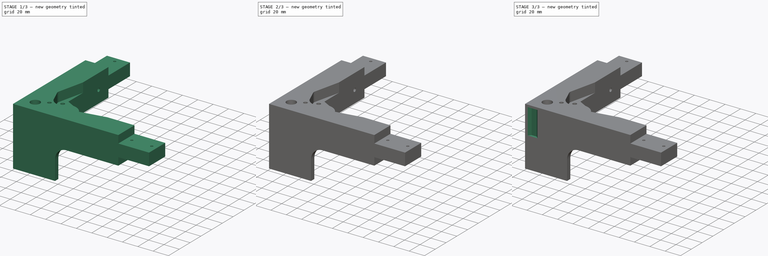
[diagram: build sequence overview — one tinted view per stage of 3, left to right]
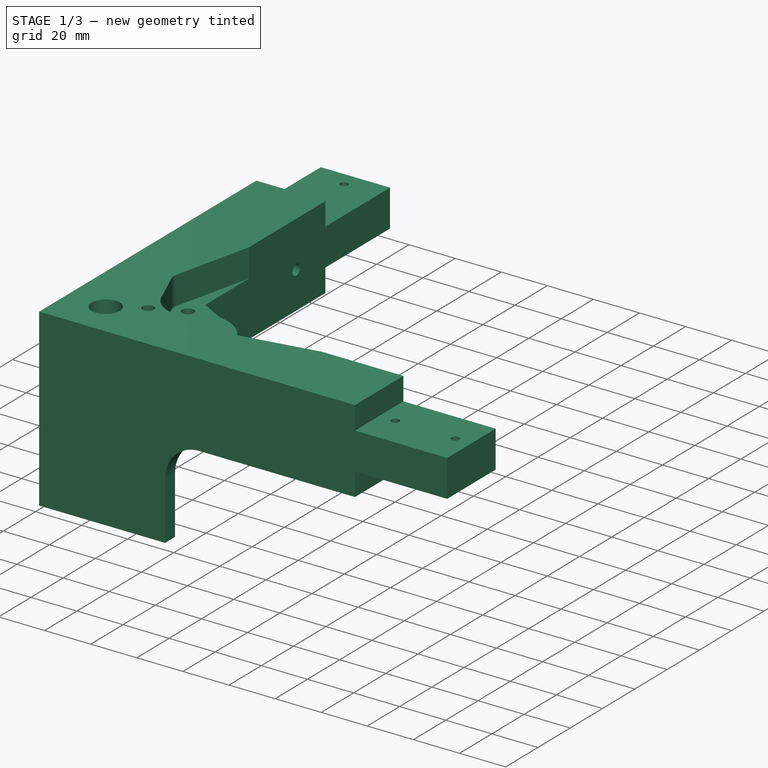
[diagram: stage 1 of 3 — iso view after this stage's code; geometry added in this stage tinted green]
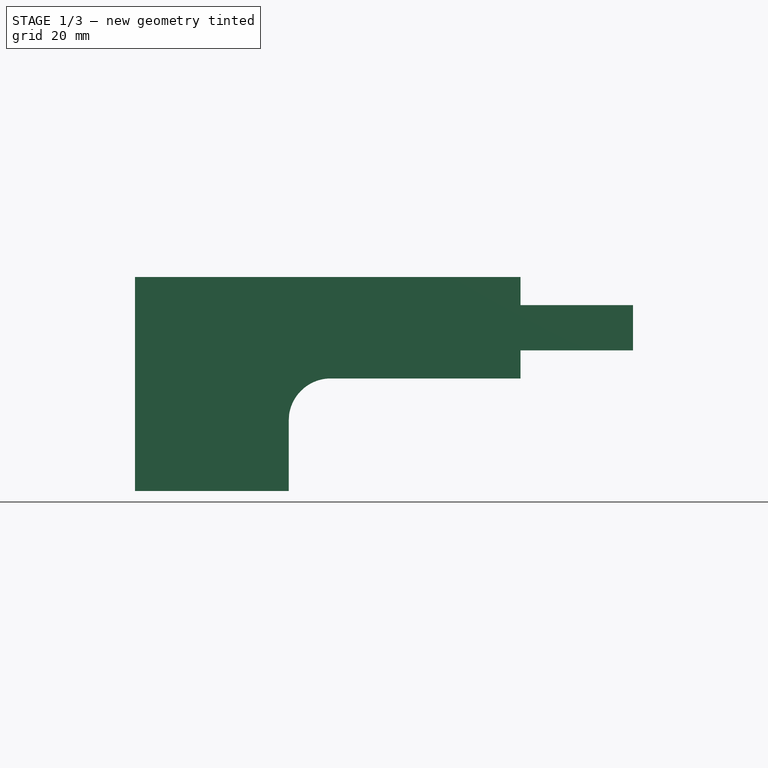
[diagram: stage 1 of 3 — front view after this stage's code; geometry added in this stage tinted green]
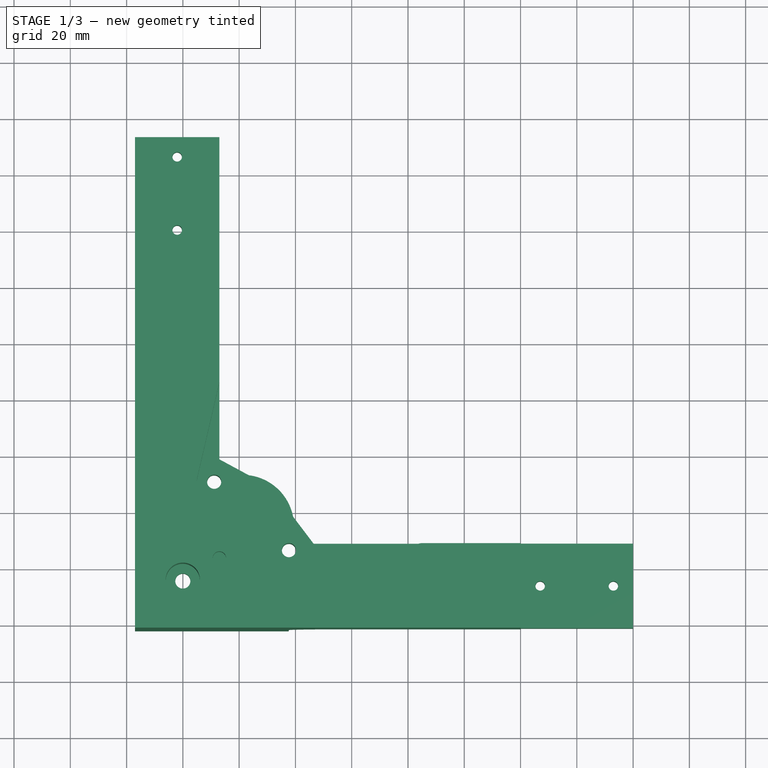
[diagram: stage 1 of 3 — top view after this stage's code; geometry added in this stage tinted green]
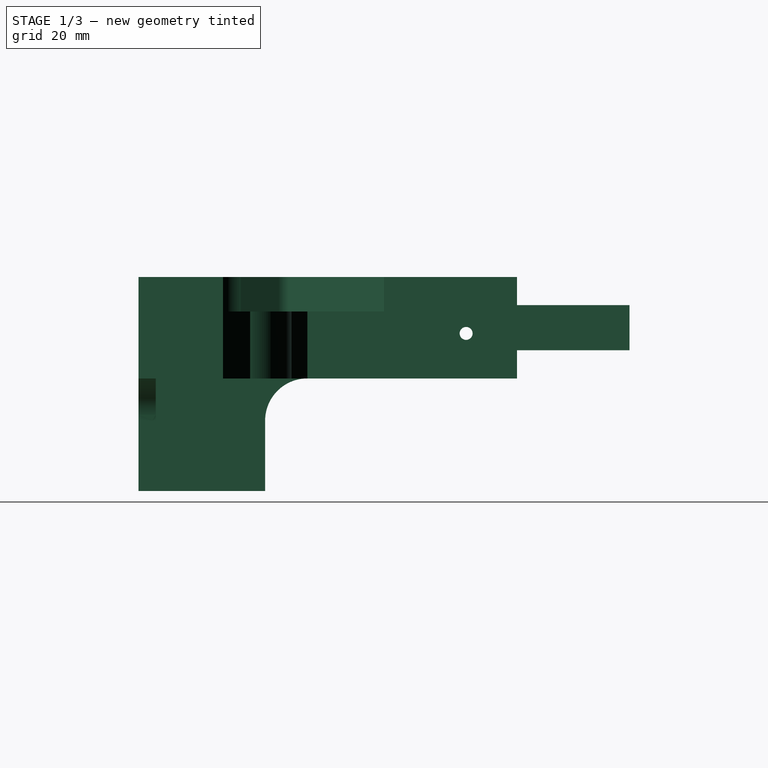
[diagram: stage 1 of 3 — right view after this stage's code; geometry added in this stage tinted green]
FCSTD DOCUMENT  (FreeCAD 2024.2R37179 (Git))
Label: Bottom_front_left_frame
License: All rights reserved
LicenseURL: http://en.wikipedia.org/wiki/All_rights_reserved
objects: PartDesign::Pocket×5, Sketcher::SketchObject×3, Part::Feature×1, PartDesign::FeatureBase×1, PartDesign::Chamfer×1, PartDesign::Body×1
note: 18 computed .brp shape members not serialized (recipe doc carries the construction recipe); baked Part::Feature solids carry a one-line shape summary decoded from their .brp

FEATURE [Part::Feature] Part__Mirroring001  label="Pocket004 (Mirror #1)001"
  shape: bbox 177 x 174.5 x 76.05 mm, 121 faces (baked)
FEATURE [PartDesign::FeatureBase] BaseFeature
  BaseFeature = -> Part__Mirroring001
  Suppressed = false
FEATURE [Sketcher::SketchObject] Sketch
  AttachmentSupport = -> [BaseFeature]
  FullyConstrained = false
  MapMode = 5
  Placement = pos=(-177.024,0,0) rot=(0.57735,-0.57735,-0.57735;2.0944rad)
  sketch-geometry (24):
    g0: Circle CenterX=145.37 CenterY=-170.095 CenterZ=0 NormalX=0 NormalY=0 NormalZ=1 AngleXU=0 Radius=1.5
    g1: Circle CenterX=145.37 CenterY=-182.097 CenterZ=0 NormalX=0 NormalY=0 NormalZ=1 AngleXU=0 Radius=1.5
    g2: Circle CenterX=145.369 CenterY=-194.094 CenterZ=0 NormalX=0 NormalY=0 NormalZ=1 AngleXU=0 Radius=1.5
    g3: LineSegment StartX=148.595 StartY=-170.095 StartZ=0 EndX=146.982 EndY=-167.302 EndZ=0
    g4: LineSegment StartX=146.982 StartY=-167.302 StartZ=0 EndX=143.758 EndY=-167.302 EndZ=0
    g5: LineSegment StartX=143.758 StartY=-167.302 StartZ=0 EndX=142.146 EndY=-170.095 EndZ=0
    g6: LineSegment StartX=142.146 StartY=-170.095 StartZ=0 EndX=143.758 EndY=-172.887 EndZ=0
    g7: LineSegment StartX=143.758 StartY=-172.887 StartZ=0 EndX=146.982 EndY=-172.887 EndZ=0
    g8: LineSegment StartX=146.982 StartY=-172.887 StartZ=0 EndX=148.595 EndY=-170.095 EndZ=0
    g9: Circle CenterX=145.37 CenterY=-170.095 CenterZ=0 NormalX=0 NormalY=0 NormalZ=1 AngleXU=0 Radius=3.2245
    g10: LineSegment StartX=148.594 StartY=-182.097 StartZ=0 EndX=146.982 EndY=-179.304 EndZ=0
    g11: LineSegment StartX=146.982 StartY=-179.304 StartZ=0 EndX=143.757 EndY=-179.304 EndZ=0
    g12: LineSegment StartX=143.757 StartY=-179.304 StartZ=0 EndX=142.145 EndY=-182.097 EndZ=0
    g13: LineSegment StartX=142.145 StartY=-182.097 StartZ=0 EndX=143.757 EndY=-184.889 EndZ=0
    g14: LineSegment StartX=143.757 StartY=-184.889 StartZ=0 EndX=146.982 EndY=-184.889 EndZ=0
    g15: LineSegment StartX=146.982 StartY=-184.889 StartZ=0 EndX=148.594 EndY=-182.097 EndZ=0
    g16: Circle CenterX=145.37 CenterY=-182.097 CenterZ=0 NormalX=0 NormalY=0 NormalZ=1 AngleXU=0 Radius=3.2245
    g17: LineSegment StartX=148.594 StartY=-194.094 StartZ=0 EndX=146.982 EndY=-191.301 EndZ=0
    g18: LineSegment StartX=146.982 StartY=-191.301 StartZ=0 EndX=143.757 EndY=-191.301 EndZ=0
    g19: LineSegment StartX=143.757 StartY=-191.301 StartZ=0 EndX=142.145 EndY=-194.094 EndZ=0
    g20: LineSegment StartX=142.145 StartY=-194.094 StartZ=0 EndX=143.757 EndY=-196.886 EndZ=0
    g21: LineSegment StartX=143.757 StartY=-196.886 StartZ=0 EndX=146.982 EndY=-196.886 EndZ=0
    g22: LineSegment StartX=146.982 StartY=-196.886 StartZ=0 EndX=148.594 EndY=-194.094 EndZ=0
    g23: Circle CenterX=145.369 CenterY=-194.094 CenterZ=0 NormalX=0 NormalY=0 NormalZ=1 AngleXU=0 Radius=3.2245
  constraints (48):
    c: Diameter(g0) = 3
    c: Diameter(g1) = 3
    c: Diameter(g2) = 3
    c: Coincident(g3,g4)
    c: Coincident(g4,g5)
    c: Coincident(g5,g6)
    c: Coincident(g6,g7)
    c: Coincident(g7,g8)
    c: Coincident(g8,g3)
    c: Equal(g3, g4-g8) x5
    c: PointOnObject(g3,g9)
    c: PointOnObject(g4,g9)
    c: PointOnObject(g5,g9)
    c: PointOnObject(g6,g9)
    c: PointOnObject(g7,g9)
    c: PointOnObject(g8,g9)
    c: Radius(g9) = 3.2245
    c: Coincident(g9,g0)
    c: Coincident(g10,g11)
    c: Coincident(g11,g12)
    c: Coincident(g12,g13)
    c: Coincident(g13,g14)
    c: Coincident(g14,g15)
    c: Coincident(g15,g10)
    c: Equal(g10, g11-g15) x5
    c: PointOnObject(g10,g16)
    c: PointOnObject(g11,g16)
    c: PointOnObject(g12,g16)
    c: PointOnObject(g13,g16)
    c: PointOnObject(g14,g16)
    c: PointOnObject(g15,g16)
    c: Radius(g16) = 3.2245
    c: Coincident(g16,g1)
    c: Coincident(g17,g18)
    c: Coincident(g18,g19)
    c: Coincident(g19,g20)
    c: Coincident(g20,g21)
    c: Coincident(g21,g22)
    c: Coincident(g22,g17)
    c: Equal(g17, g18-g22) x5
    c: PointOnObject(g17,g23)
    c: PointOnObject(g18,g23)
    c: PointOnObject(g19,g23)
    c: PointOnObject(g20,g23)
    c: PointOnObject(g21,g23)
    c: PointOnObject(g22,g23)
    c: Radius(g23) = 3.2245
    c: Coincident(g23,g2)
FEATURE [PartDesign::Pocket] Pocket
  BaseFeature = -> BaseFeature
  Direction = (1,0,0)
  Length = 5
  Length2 = 5
  Profile = -> Sketch
  ReferenceAxis = -> Sketch [N_Axis]
  Refine = true
  Suppressed = false
  Type = 0
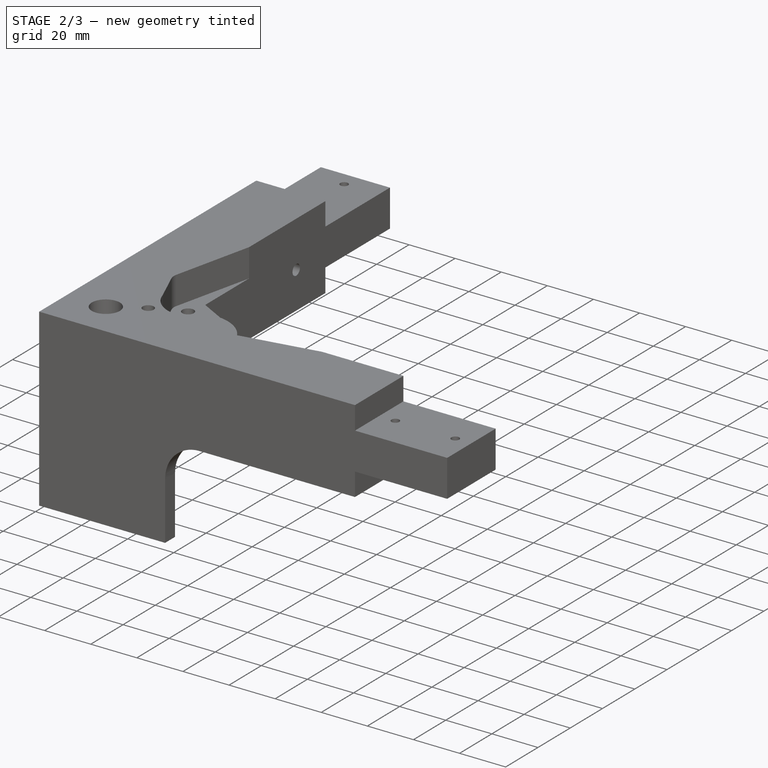
[diagram: stage 2 of 3 — iso view after this stage's code; geometry added in this stage tinted green]
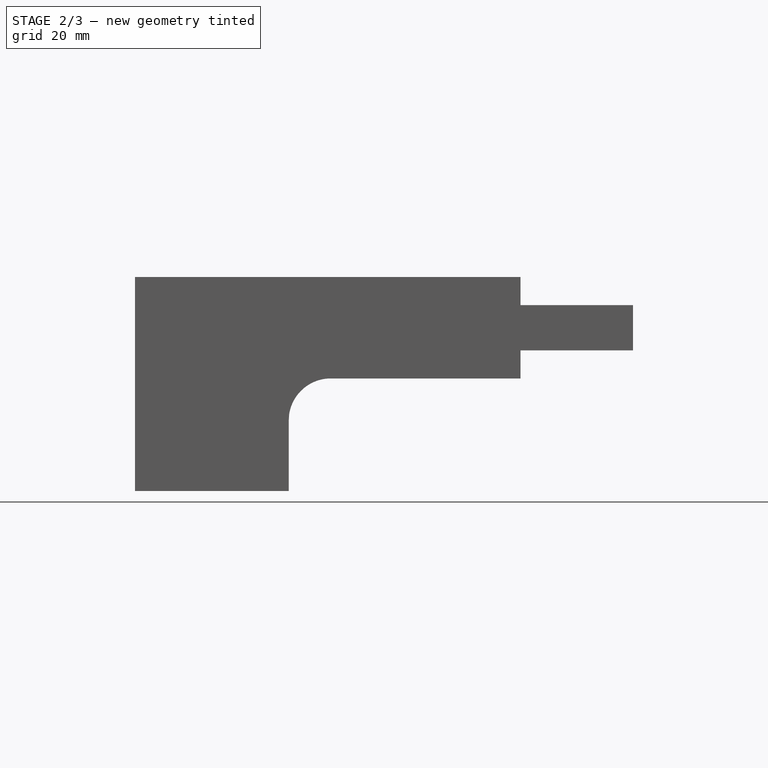
[diagram: stage 2 of 3 — front view after this stage's code; geometry added in this stage tinted green]
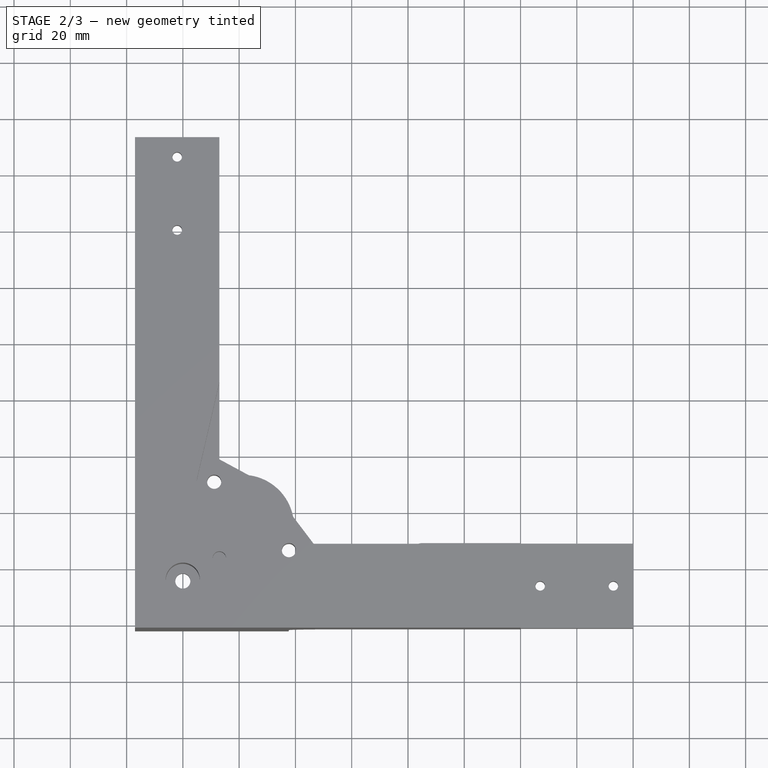
[diagram: stage 2 of 3 — top view after this stage's code; geometry added in this stage tinted green]
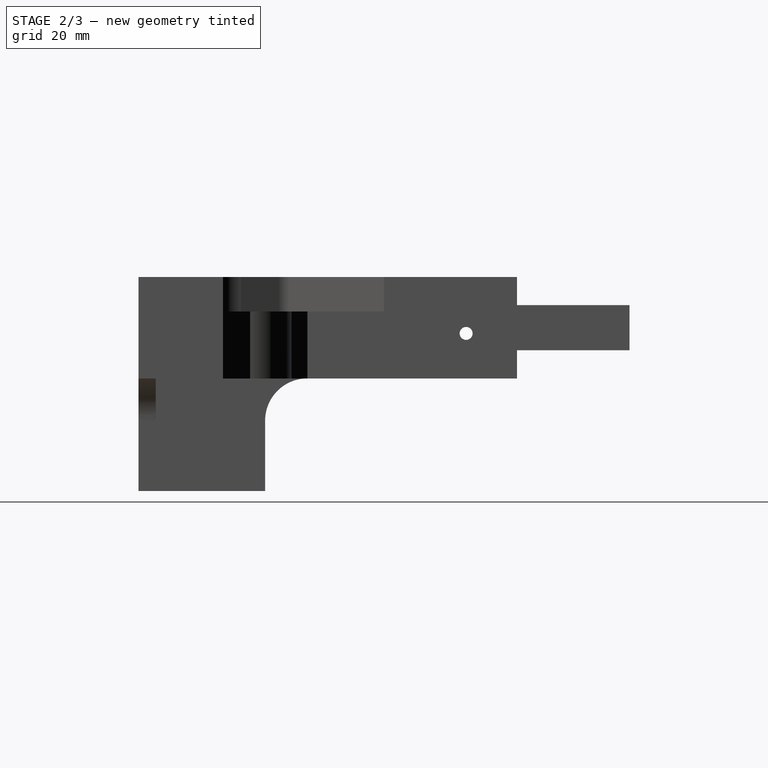
[diagram: stage 2 of 3 — right view after this stage's code; geometry added in this stage tinted green]
FEATURE [PartDesign::Pocket] Pocket001
  BaseFeature = -> Pocket
  Direction = (13270.5,0,0)
  Length = 5
  Length2 = 5
  Profile = -> Pocket [Face145,Face146,Face147]
  Refine = true
  Suppressed = false
  Type = 0
FEATURE [Sketcher::SketchObject] Sketch001
  AttachmentSupport = -> [Pocket001]
  FullyConstrained = false
  MapMode = 5
  Placement = pos=(-177.024,0,0) rot=(0.57735,-0.57735,-0.57735;2.0944rad)
  sketch-geometry (8):
    g0: Circle CenterX=95.3665 CenterY=-182.098 CenterZ=0 NormalX=0 NormalY=0 NormalZ=1 AngleXU=0 Radius=1.819
    g1: LineSegment StartX=98.591 StartY=-182.098 StartZ=0 EndX=96.9788 EndY=-179.305 EndZ=0
    g2: LineSegment StartX=96.9788 StartY=-179.305 StartZ=0 EndX=93.7543 EndY=-179.305 EndZ=0
    g3: LineSegment StartX=93.7543 StartY=-179.305 StartZ=0 EndX=92.142 EndY=-182.098 EndZ=0
    g4: LineSegment StartX=92.142 StartY=-182.098 StartZ=0 EndX=93.7543 EndY=-184.89 EndZ=0
    g5: LineSegment StartX=93.7543 StartY=-184.89 StartZ=0 EndX=96.9788 EndY=-184.89 EndZ=0
    g6: LineSegment StartX=96.9788 StartY=-184.89 StartZ=0 EndX=98.591 EndY=-182.098 EndZ=0
    g7: Circle CenterX=95.3665 CenterY=-182.098 CenterZ=0 NormalX=0 NormalY=0 NormalZ=1 AngleXU=0 Radius=3.2245
  constraints (16):
    c: Radius(g0) = 1.819
    c: Coincident(g1,g2)
    c: Coincident(g2,g3)
    c: Coincident(g3,g4)
    c: Coincident(g4,g5)
    c: Coincident(g5,g6)
    c: Coincident(g6,g1)
    c: Equal(g1, g2-g6) x5
    c: PointOnObject(g1,g7)
    c: PointOnObject(g2,g7)
    c: PointOnObject(g3,g7)
    c: PointOnObject(g4,g7)
    c: PointOnObject(g5,g7)
    c: PointOnObject(g6,g7)
    c: Radius(g7) = 3.2245
    c: Coincident(g7,g0)
FEATURE [PartDesign::Pocket] Pocket002
  BaseFeature = -> Pocket001
  Direction = (1,0,0)
  Length = 5
  Length2 = 5
  Profile = -> Sketch001
  ReferenceAxis = -> Sketch001 [N_Axis]
  Refine = true
  Suppressed = false
  Type = 0
FEATURE [PartDesign::Pocket] Pocket003
  BaseFeature = -> Pocket002
  Direction = (13270.5,0,0)
  Length = 5
  Length2 = 5
  Profile = -> Pocket002 [Face153]
  Refine = true
  Suppressed = false
  Type = 0
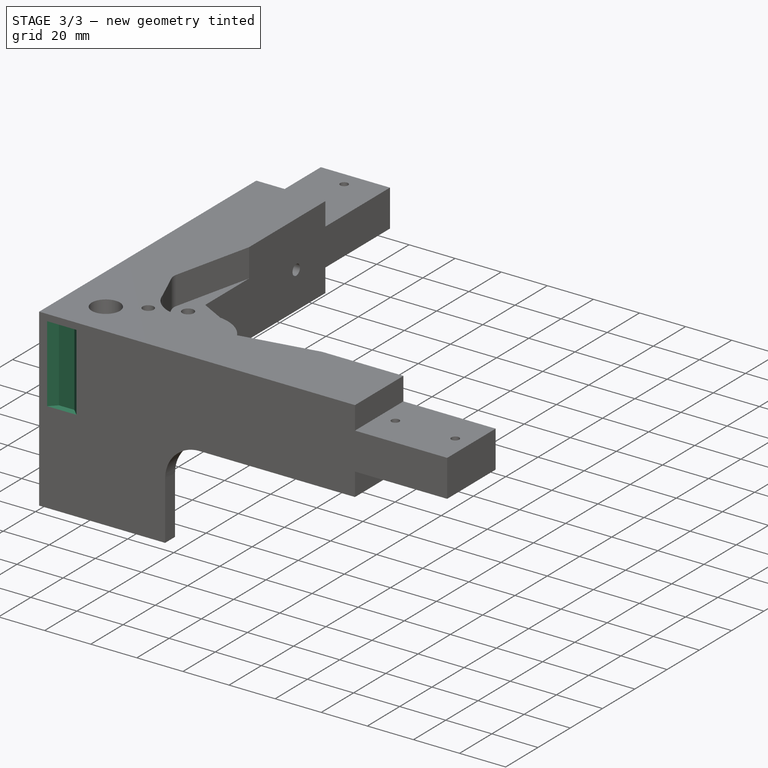
[diagram: stage 3 of 3 — iso view after this stage's code; geometry added in this stage tinted green]
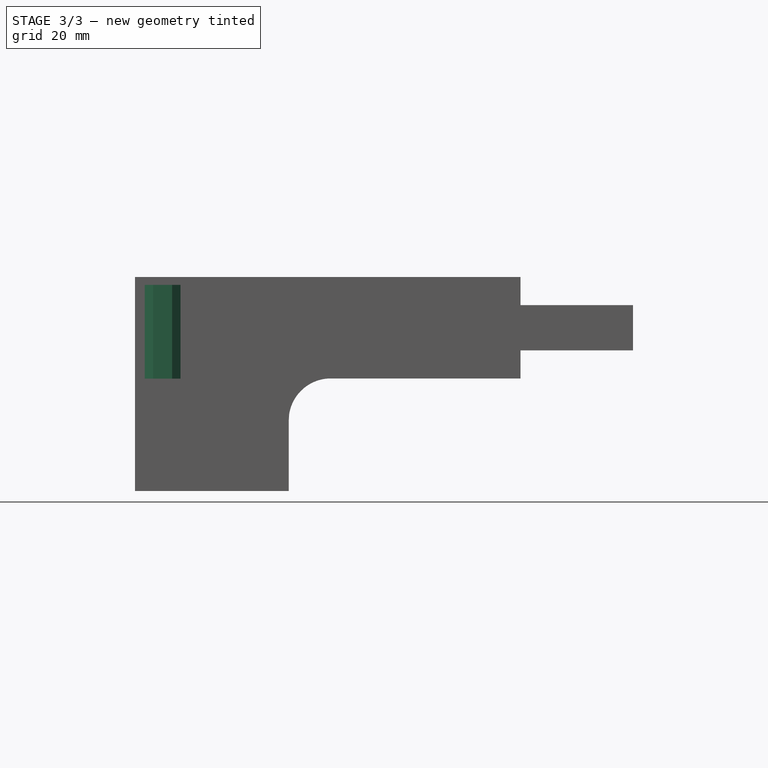
[diagram: stage 3 of 3 — front view after this stage's code; geometry added in this stage tinted green]
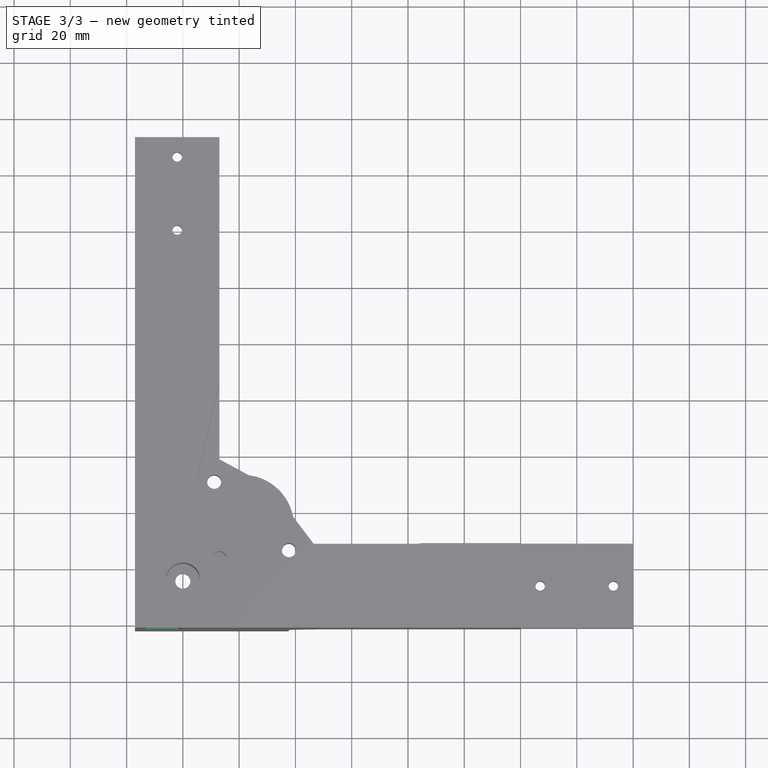
[diagram: stage 3 of 3 — top view after this stage's code; geometry added in this stage tinted green]
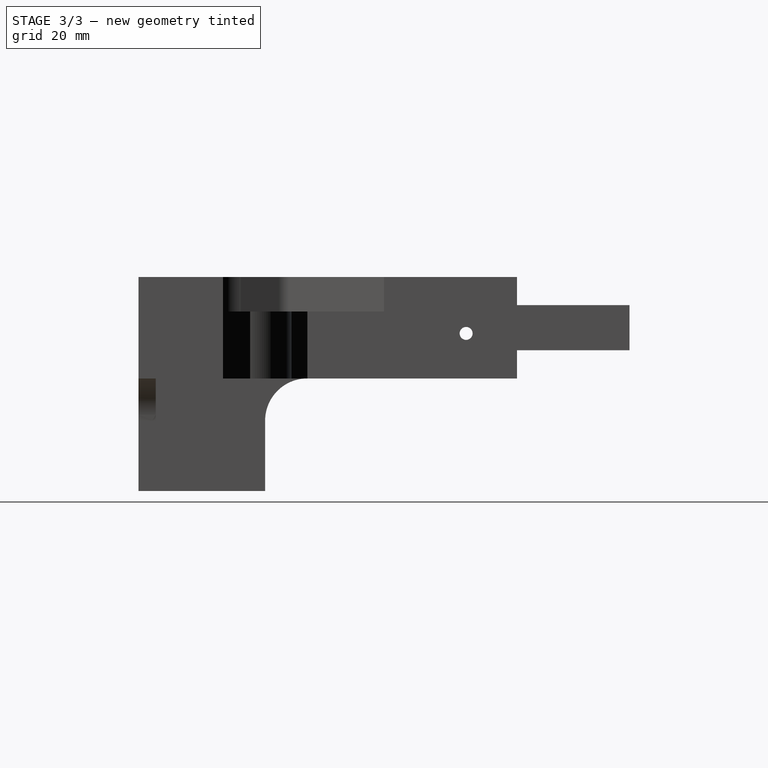
[diagram: stage 3 of 3 — right view after this stage's code; geometry added in this stage tinted green]
FEATURE [Sketcher::SketchObject] Sketch002
  AttachmentSupport = -> [Pocket003]
  FullyConstrained = false
  MapMode = 5
  Placement = pos=(0,-161.936,0) rot=(1,0,0;1.5708rad)
  sketch-geometry (4):
    g0: LineSegment StartX=-170.564 StartY=-166.71 StartZ=0 EndX=-170.564 EndY=-200.031 EndZ=0
    g1: LineSegment StartX=-170.564 StartY=-200.031 StartZ=0 EndX=-163.838 EndY=-200.031 EndZ=0
    g2: LineSegment StartX=-163.838 StartY=-200.031 StartZ=0 EndX=-163.838 EndY=-166.71 EndZ=0
    g3: LineSegment StartX=-163.838 StartY=-166.71 StartZ=0 EndX=-170.564 EndY=-166.71 EndZ=0
  constraints (8):
    c: Coincident(g0,g1)
    c: Coincident(g1,g2)
    c: Coincident(g2,g3)
    c: Coincident(g3,g0)
    c: Vertical(g0)
    c: Vertical(g2)
    c: Horizontal(g1)
    c: Horizontal(g3)
FEATURE [PartDesign::Pocket] Pocket004
  BaseFeature = -> Pocket003
  Direction = (0,1,-2e-16)
  Length = 3
  Length2 = 5
  Profile = -> Sketch002
  ReferenceAxis = -> Sketch002 [N_Axis]
  Refine = true
  Suppressed = false
  Type = 0
FEATURE [PartDesign::Chamfer] Chamfer
  Angle = 45
  Base = -> Pocket004 [Edge236,Edge238]
  BaseFeature = -> Pocket004
  ChamferType = 0
  FlipDirection = false
  Refine = true
  Size = 2.99
  Size2 = 1
  SupportTransform = false
  Suppressed = false
  UseAllEdges = false
FEATURE [PartDesign::Body] Body
  BaseFeature = -> Part__Mirroring001
  Group = -> [BaseFeature,Sketch,Pocket,Pocket001,Sketch001,Pocket002,Pocket003,Sketch002,Pocket004,Chamfer]
  Origin = -> Origin
  Tip = -> Chamfer
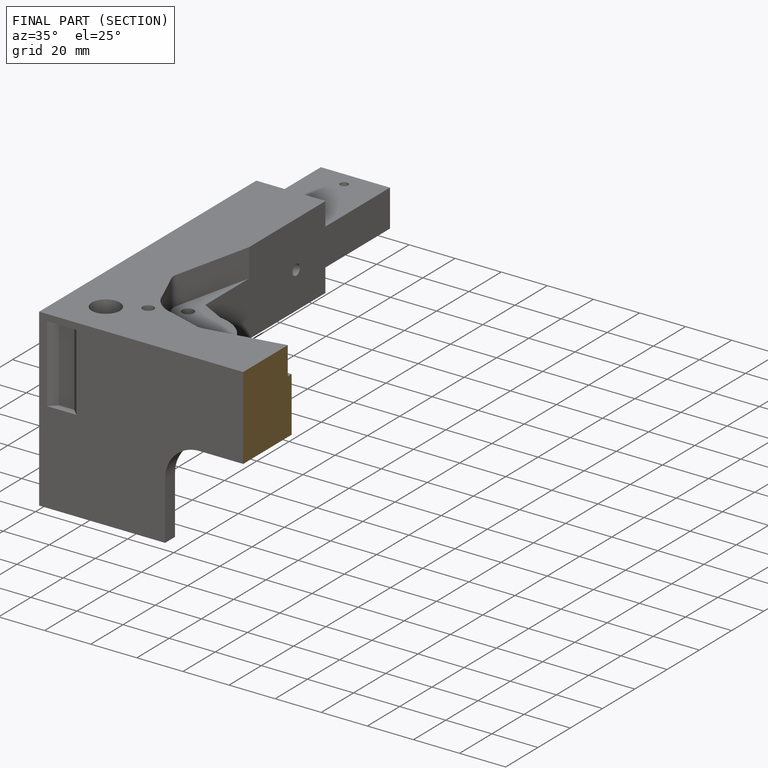
[diagram: finished part — half-section view (interior)]
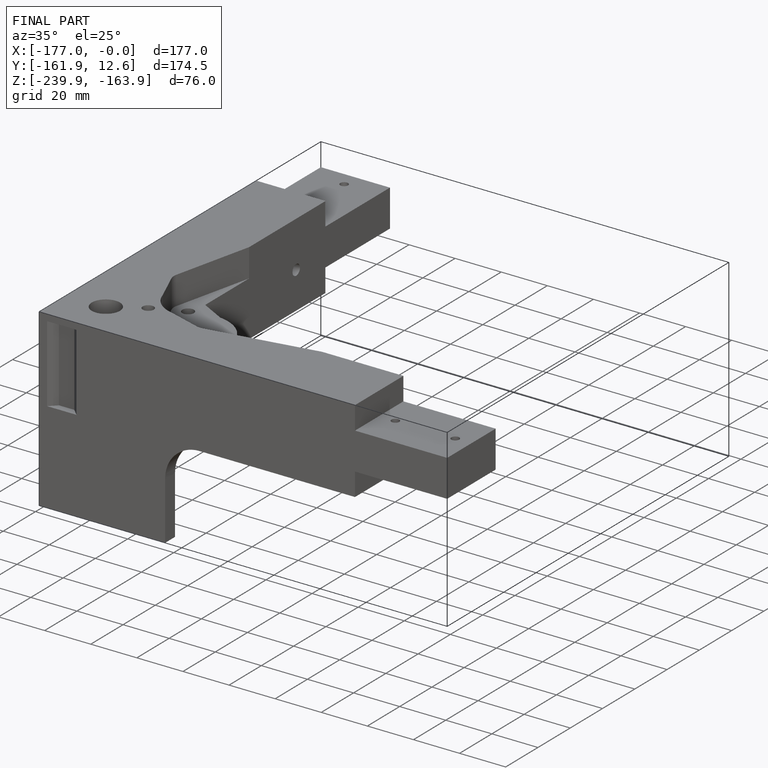
[diagram: finished part — iso view with bounding-box wireframe]
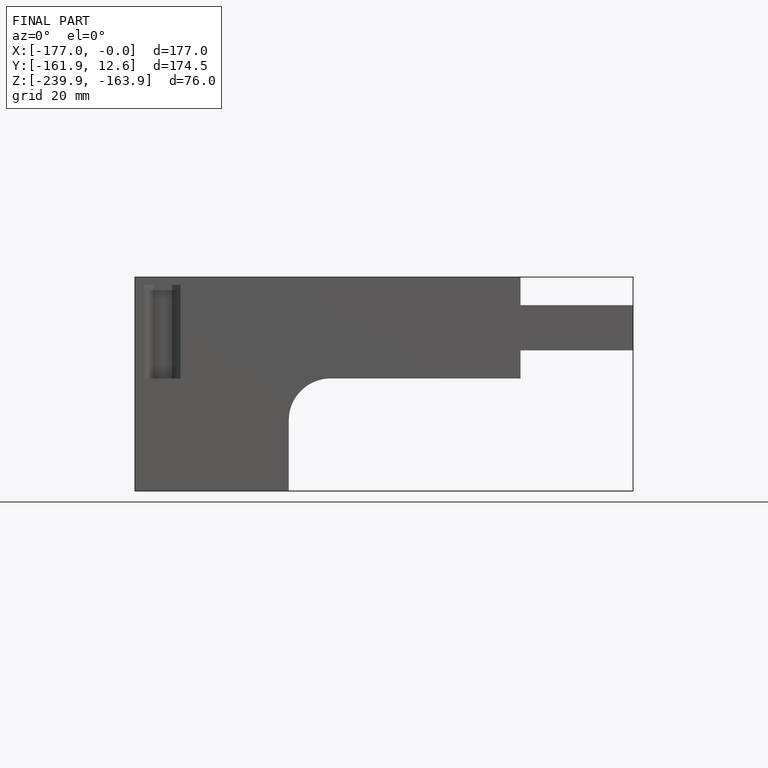
[diagram: finished part — front view with bounding-box wireframe]
